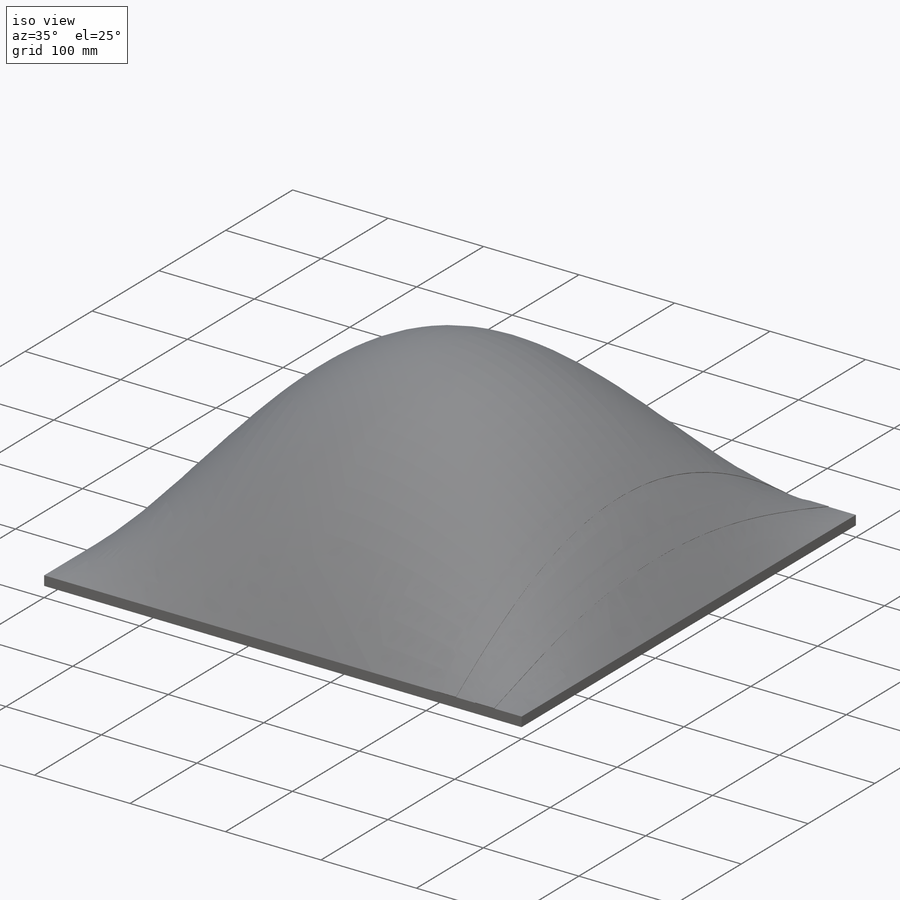
[diagram: iso view]
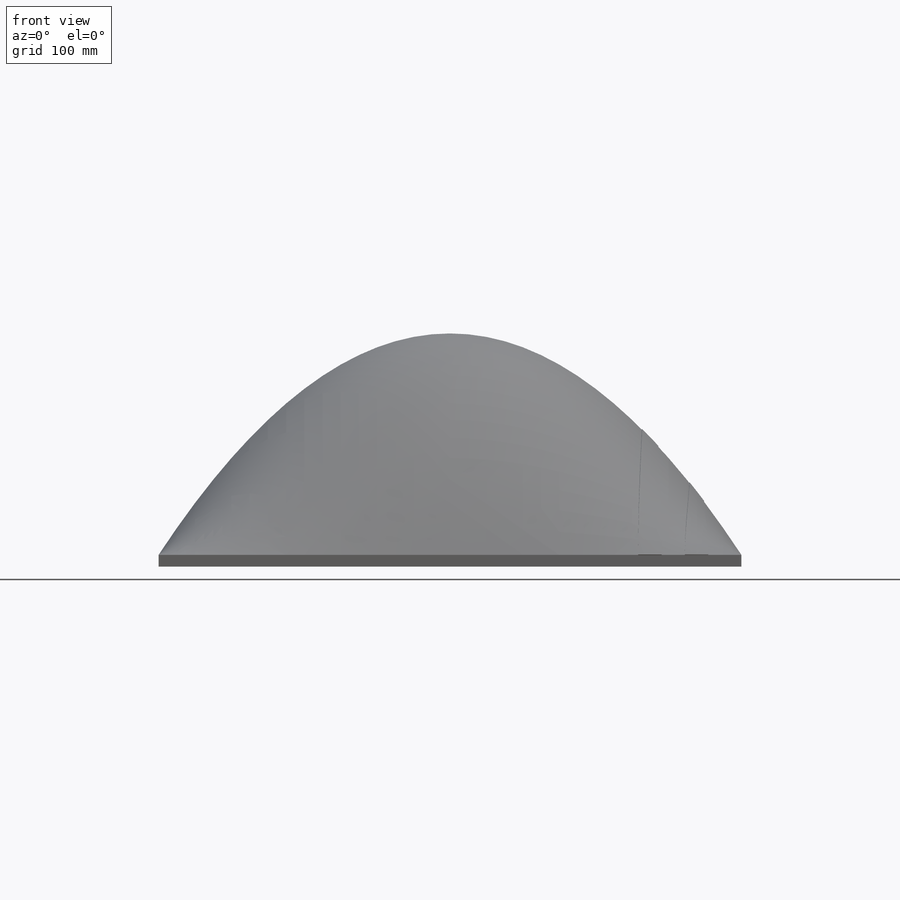
[diagram: front view]
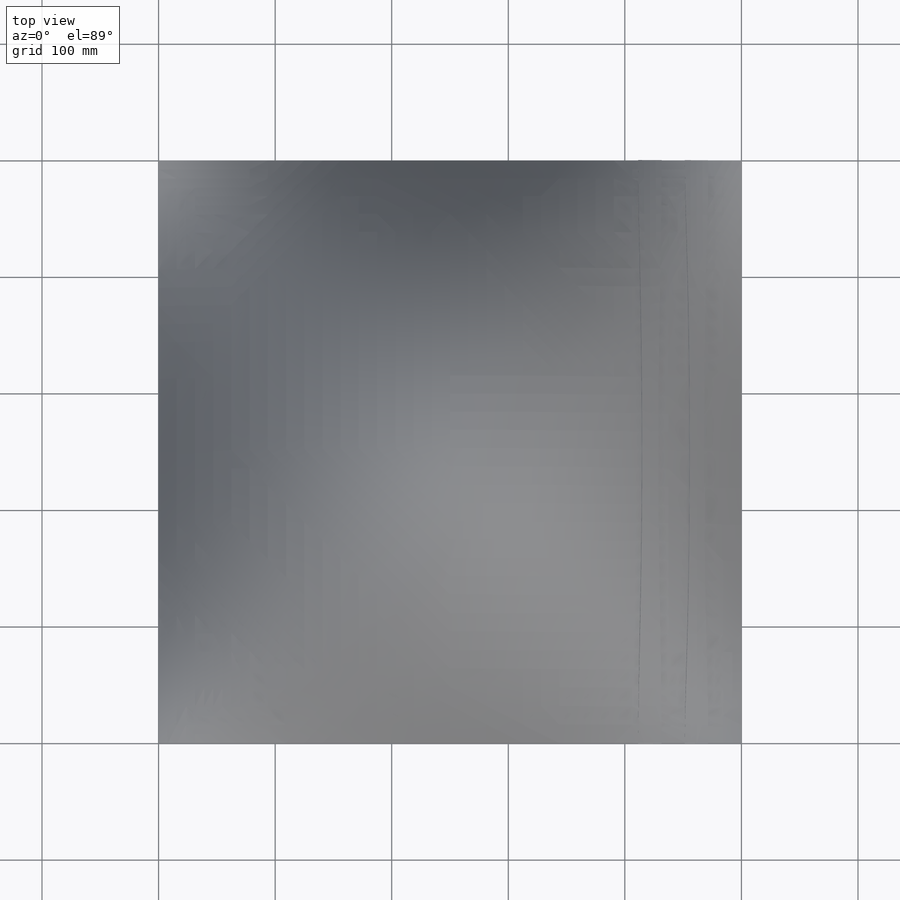
[diagram: top view]
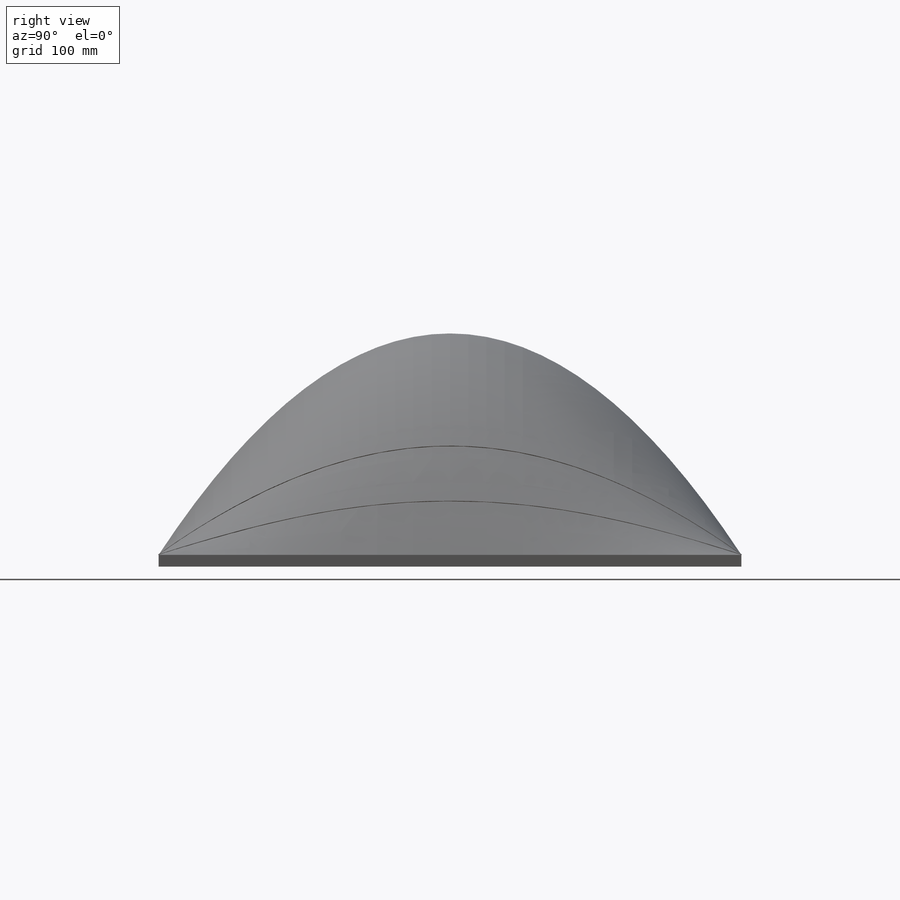
[diagram: right view]
SOLIDWORKS PART (.sldprt)
format: sldprt  version: not decoded by parser v0  size: 486,400 bytes
history: native  units: mm
features: sketch x18, extrude x13, plane x6, delete_body x2, material x1, dome x1, surface_op x1 (+9 scaffold rows collapsed)
feature tree (51):
  scaffold x9  (default folders/planes/origin — collapsed)
  material  "Material <nicht festgelegt>"
  plane  "Ebene vorne"
  plane  "Ebene oben"
  plane  "Ebene rechts"
  sketch  "Skizze1"  dims[D1=500.0mm D2=500.0mm]
  extrude  "Aufsatz-Linear austragen1"  Depth=10mm
  dome  "Kuppel1"
  sketch  "Skizze2"
  plane  "Ebene1"  Offset=250mm
  sketch  "Skizze4"
  sketch  "Skizze5"  dims[D1=20.0mm]
  extrude  "Kurve5"  [1 undecoded]
  sketch  "Skizze6"  dims[D1=20.0mm]
  extrude  "Kurve6"  [1 undecoded]
  sketch  "Skizze7"  dims[D1=20.0mm]
  extrude  "Kurve7"  [1 undecoded]
  sketch  "Skizze8"  dims[D1=20.0mm]
  extrude  "Kurve8"  [1 undecoded]
  sketch  "Skizze9"  dims[D1=20.0mm]
  extrude  "Kurve9"  [1 undecoded]
  sketch  "Skizze10"  dims[D1=20.0mm]
  extrude  "Kurve10"  [1 undecoded]
  sketch  "Skizze11"  dims[D1=20.0mm]
  extrude  "Kurve11"  [1 undecoded]
  sketch  "Skizze12"  dims[D1=20.0mm]
  extrude  "Kurve12"  [1 undecoded]
  sketch  "Skizze13"  dims[D1=20.0mm]
  extrude  "Kurve13"  [1 undecoded]
  sketch  "Skizze14"  dims[D1=20.0mm]
  extrude  "Kurve14"  [1 undecoded]
  sketch  "Skizze15"  dims[D1=20.0mm]
  extrude  "Kurve15"  [1 undecoded]
  sketch  "Skizze16"  dims[D1=20.0mm]
  extrude  "Kurve16"  [1 undecoded]
  sketch  "Skizze18"  dims[D1=10.0mm D2=10.0mm D3=0.0mm D4=0.5mm]
  plane  "Ebene2"
  sketch  "Skizze19"  dims[c1.D1=20.0mm c2.D1=0.0mm]
  plane  "Ebene3"
  sketch  "Skizze20"  dims[D1=20.0mm]
  surface_op  "Oberfläche-Austragung2"
  delete_body  "Körper-Löschen1"
  delete_body  "Wanddicke auftragen2"
decode coverage: 17 of 35 modeling features carry decoded parameters
note: 12 parameter values undecoded
summary: no parameter record found for 12 features
note: suppression state not decoded; provenance and decode notes live in map.json
